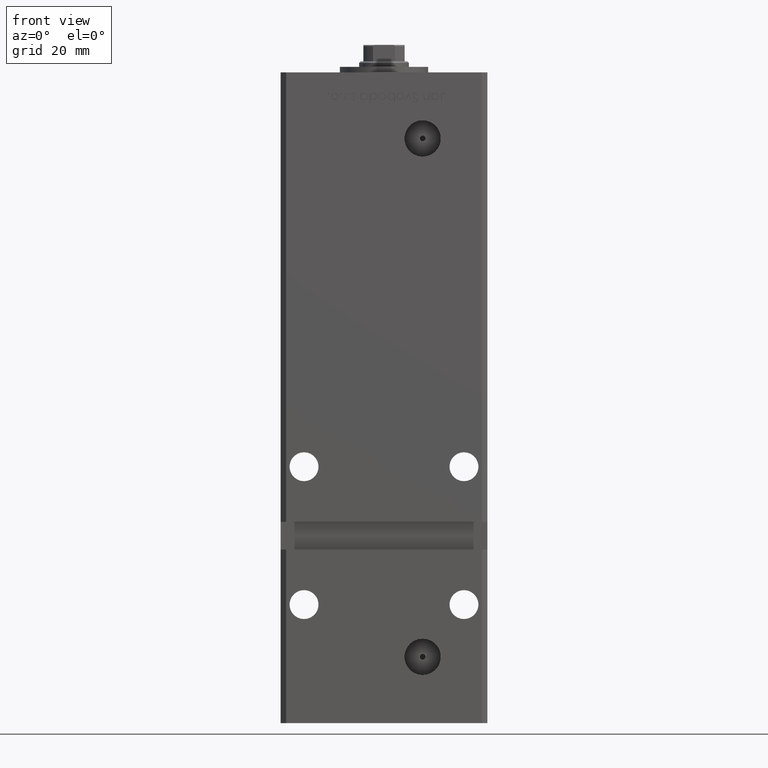
[diagram: clean part render]
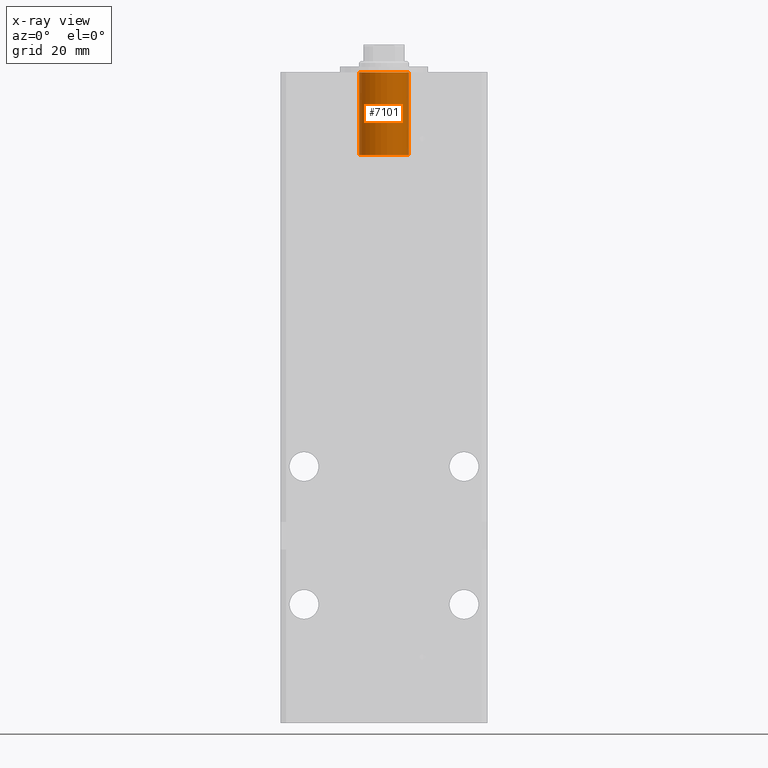
[diagram: x-ray — body ghosted, one internal face saturated and labeled with its STEP entity id]
A machine part, front view, then the same camera in x-ray: the body is ghosted and one INTERNAL B-rep face — a face not visible from any outside direction — is saturated and labeled: STEP entity #7101.
In plain terms, the highlighted cylindrical surface (edge-blend (fillet) strip) has radius 9 mm, axis along (0, 0, 1).
Its self-contained STEP definition (entity closure, byte-faithful):
#1046 = CARTESIAN_POINT ( 'NONE',  ( 0.000000000000000000, -6.938893903907228378E-15, -30.00000000000000000 ) ) ;
#2254 = ORIENTED_EDGE ( 'NONE', *, *, #47338, .T. ) ;
#2433 = DIRECTION ( 'NONE',  ( -0.000000000000000000, -0.000000000000000000, 1.000000000000000000 ) ) ;
#4800 = DIRECTION ( 'NONE',  ( -0.000000000000000000, -0.000000000000000000, 1.000000000000000000 ) ) ;
#6675 = VERTEX_POINT ( 'NONE', #27470 ) ;
#7101 = ADVANCED_FACE ( 'NONE', ( #46722 ), #37860, .F. ) ;
#10591 = EDGE_CURVE ( 'NONE', #6675, #32601, #14505, .T. ) ;
#10692 = VECTOR ( 'NONE', #2433, 1000.000000000000000 ) ;
#11297 = DIRECTION ( 'NONE',  ( 0.000000000000000000, 0.000000000000000000, 1.000000000000000000 ) ) ;
#11300 = CARTESIAN_POINT ( 'NONE',  ( -8.999999999999996447, -5.836711784674611255E-15, -30.00000000000000000 ) ) ;
#14505 = LINE ( 'NONE', #47847, #10692 ) ;
#15937 = EDGE_CURVE ( 'NONE', #47050, #6675, #32339, .T. ) ;
#16114 = CARTESIAN_POINT ( 'NONE',  ( 0.000000000000000000, -6.938893903907228378E-15, -30.00000000000000000 ) ) ;
#16874 = AXIS2_PLACEMENT_3D ( 'NONE', #16114, #52177, #19353 ) ;
#17950 = DIRECTION ( 'NONE',  ( 1.000000000000000000, 0.000000000000000000, 0.000000000000000000 ) ) ;
#18593 = CIRCLE ( 'NONE', #19440, 8.999999999999996447 ) ;
#19353 = DIRECTION ( 'NONE',  ( 1.000000000000000000, 0.000000000000000000, 0.000000000000000000 ) ) ;
#19440 = AXIS2_PLACEMENT_3D ( 'NONE', #48145, #11297, #48413 ) ;
#20158 = EDGE_LOOP ( 'NONE', ( #41216, #2254, #36350, #48443 ) ) ;
#20264 = EDGE_CURVE ( 'NONE', #44386, #32601, #18593, .T. ) ;
#27470 = CARTESIAN_POINT ( 'NONE',  ( 8.999999999999996447, -6.938893903907228378E-15, -30.00000000000000000 ) ) ;
#28612 = CARTESIAN_POINT ( 'NONE',  ( -8.999999999999996447, -5.836711784674611255E-15, -30.00000000000000000 ) ) ;
#32339 = CIRCLE ( 'NONE', #16874, 8.999999999999996447 ) ;
#32601 = VERTEX_POINT ( 'NONE', #38959 ) ;
#33180 = LINE ( 'NONE', #28612, #48823 ) ;
#36350 = ORIENTED_EDGE ( 'NONE', *, *, #20264, .T. ) ;
#37219 = DIRECTION ( 'NONE',  ( -0.000000000000000000, -0.000000000000000000, 1.000000000000000000 ) ) ;
#37860 = CYLINDRICAL_SURFACE ( 'NONE', #43243, 8.999999999999996447 ) ;
#38959 = CARTESIAN_POINT ( 'NONE',  ( 8.999999999999996447, -6.938893903907228378E-15, 0.000000000000000000 ) ) ;
#41216 = ORIENTED_EDGE ( 'NONE', *, *, #15937, .F. ) ;
#43167 = CARTESIAN_POINT ( 'NONE',  ( -8.999999999999996447, -5.836711784674611255E-15, 0.000000000000000000 ) ) ;
#43243 = AXIS2_PLACEMENT_3D ( 'NONE', #1046, #4800, #17950 ) ;
#44386 = VERTEX_POINT ( 'NONE', #43167 ) ;
#46722 = FACE_OUTER_BOUND ( 'NONE', #20158, .T. ) ;
#47050 = VERTEX_POINT ( 'NONE', #11300 ) ;
#47338 = EDGE_CURVE ( 'NONE', #47050, #44386, #33180, .T. ) ;
#47847 = CARTESIAN_POINT ( 'NONE',  ( 8.999999999999996447, -6.938893903907228378E-15, -30.00000000000000000 ) ) ;
#48145 = CARTESIAN_POINT ( 'NONE',  ( 0.000000000000000000, -6.938893903907228378E-15, 0.000000000000000000 ) ) ;
#48413 = DIRECTION ( 'NONE',  ( 1.000000000000000000, 0.000000000000000000, 0.000000000000000000 ) ) ;
#48443 = ORIENTED_EDGE ( 'NONE', *, *, #10591, .F. ) ;
#48823 = VECTOR ( 'NONE', #37219, 1000.000000000000000 ) ;
#52177 = DIRECTION ( 'NONE',  ( 0.000000000000000000, 0.000000000000000000, 1.000000000000000000 ) ) ;